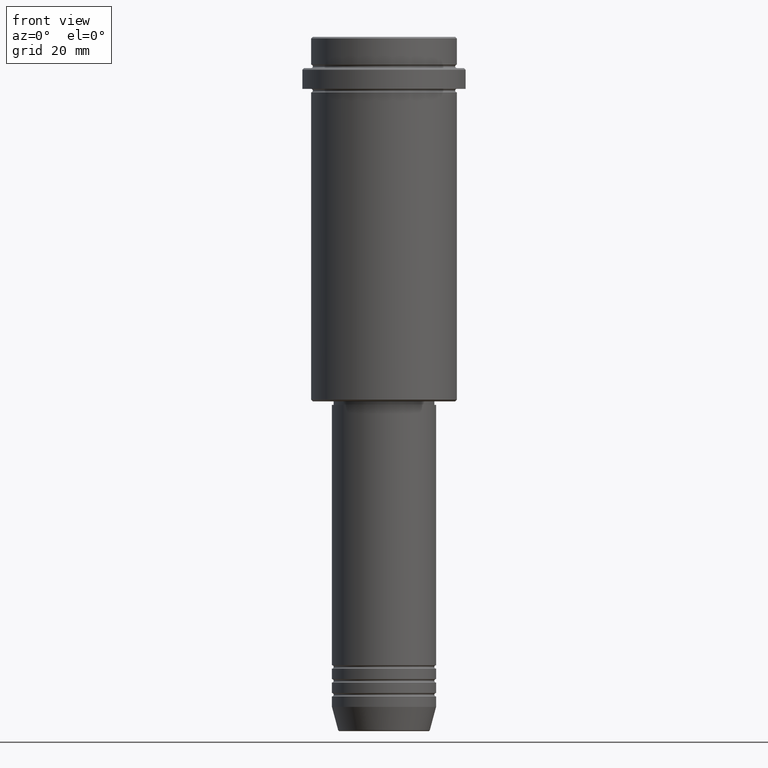
[diagram: clean part render]
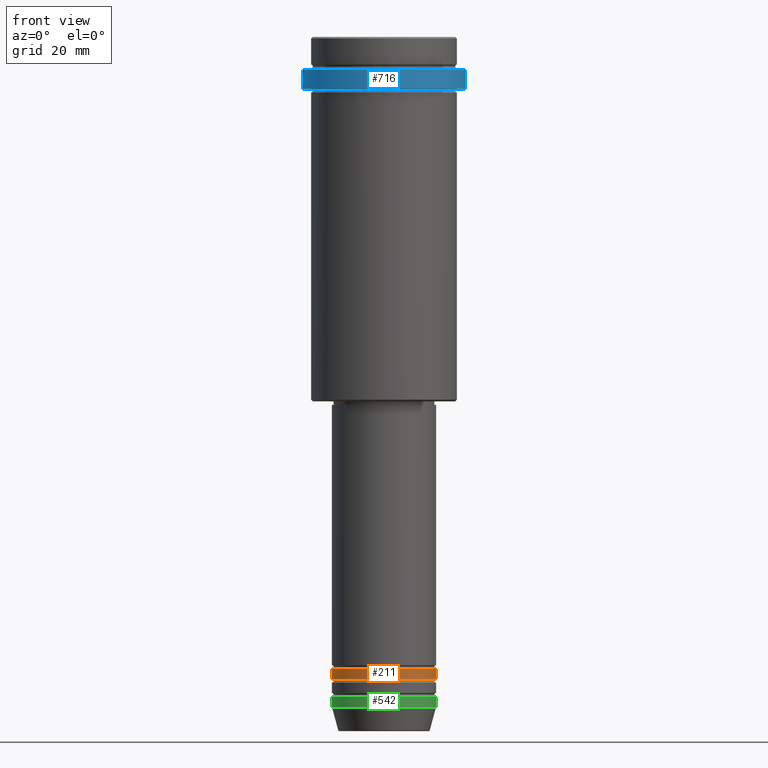
[diagram: same view with three faces highlighted in distinct colors, each labeled with its STEP entity id]
A machine part, front view with three faces highlighted in distinct colors.
Their STEP definitions:

[orange] entity #211 — the highlighted cylindrical surface (partial cylindrical patch) has radius 15 mm, axis along (-0, -0, 1).
#5 = ORIENTED_EDGE ( 'NONE', *, *, #12, .T. ) ;
#12 = EDGE_CURVE ( 'NONE', #1263, #1382, #165, .T. ) ;
#67 = CARTESIAN_POINT ( 'NONE',  ( -15.00000000000000000, 1.836970198721029589E-15, -184.9999999999998863 ) ) ;
#77 = CARTESIAN_POINT ( 'NONE',  ( -15.00000000000000000, 1.836970198721029589E-15, -181.9999999999998863 ) ) ;
#85 = LINE ( 'NONE', #97, #1361 ) ;
#97 = CARTESIAN_POINT ( 'NONE',  ( 15.00000000000000000, 0.000000000000000000, 0.000000000000000000 ) ) ;
#117 = CARTESIAN_POINT ( 'NONE',  ( -15.00000000000000000, 1.836970198721029589E-15, 0.000000000000000000 ) ) ;
#122 = DIRECTION ( 'NONE',  ( -0.000000000000000000, -0.000000000000000000, 1.000000000000000000 ) ) ;
#165 = CIRCLE ( 'NONE', #826, 15.00000000000000000 ) ;
#211 = ADVANCED_FACE ( 'NONE', ( #1230 ), #249, .T. ) ;
#232 = ORIENTED_EDGE ( 'NONE', *, *, #506, .F. ) ;
#249 = CYLINDRICAL_SURFACE ( 'NONE', #673, 15.00000000000000000 ) ;
#258 = VERTEX_POINT ( 'NONE', #930 ) ;
#277 = CARTESIAN_POINT ( 'NONE',  ( 0.000000000000000000, 0.000000000000000000, -184.9999999999998863 ) ) ;
#349 = CARTESIAN_POINT ( 'NONE',  ( 0.000000000000000000, 0.000000000000000000, 0.000000000000000000 ) ) ;
#506 = EDGE_CURVE ( 'NONE', #751, #258, #855, .T. ) ;
#556 = EDGE_LOOP ( 'NONE', ( #1279, #5, #644, #232 ) ) ;
#644 = ORIENTED_EDGE ( 'NONE', *, *, #1234, .T. ) ;
#668 = DIRECTION ( 'NONE',  ( 1.000000000000000000, 0.000000000000000000, 0.000000000000000000 ) ) ;
#673 = AXIS2_PLACEMENT_3D ( 'NONE', #349, #1215, #676 ) ;
#676 = DIRECTION ( 'NONE',  ( 1.000000000000000000, 0.000000000000000000, 0.000000000000000000 ) ) ;
#751 = VERTEX_POINT ( 'NONE', #77 ) ;
#826 = AXIS2_PLACEMENT_3D ( 'NONE', #277, #933, #1406 ) ;
#842 = DIRECTION ( 'NONE',  ( -0.000000000000000000, -0.000000000000000000, 1.000000000000000000 ) ) ;
#855 = CIRCLE ( 'NONE', #1335, 15.00000000000000000 ) ;
#879 = CARTESIAN_POINT ( 'NONE',  ( 15.00000000000000000, 0.000000000000000000, -184.9999999999998863 ) ) ;
#930 = CARTESIAN_POINT ( 'NONE',  ( 15.00000000000000000, 0.000000000000000000, -181.9999999999998863 ) ) ;
#933 = DIRECTION ( 'NONE',  ( -0.000000000000000000, -0.000000000000000000, 1.000000000000000000 ) ) ;
#1215 = DIRECTION ( 'NONE',  ( -0.000000000000000000, -0.000000000000000000, 1.000000000000000000 ) ) ;
#1230 = FACE_OUTER_BOUND ( 'NONE', #556, .T. ) ;
#1234 = EDGE_CURVE ( 'NONE', #1382, #258, #85, .T. ) ;
#1245 = VECTOR ( 'NONE', #1298, 1000.000000000000000 ) ;
#1263 = VERTEX_POINT ( 'NONE', #67 ) ;
#1279 = ORIENTED_EDGE ( 'NONE', *, *, #1360, .F. ) ;
#1298 = DIRECTION ( 'NONE',  ( -0.000000000000000000, -0.000000000000000000, 1.000000000000000000 ) ) ;
#1324 = CARTESIAN_POINT ( 'NONE',  ( 0.000000000000000000, 0.000000000000000000, -181.9999999999998863 ) ) ;
#1328 = LINE ( 'NONE', #117, #1245 ) ;
#1335 = AXIS2_PLACEMENT_3D ( 'NONE', #1324, #122, #668 ) ;
#1360 = EDGE_CURVE ( 'NONE', #1263, #751, #1328, .T. ) ;
#1361 = VECTOR ( 'NONE', #842, 1000.000000000000000 ) ;
#1382 = VERTEX_POINT ( 'NONE', #879 ) ;
#1406 = DIRECTION ( 'NONE',  ( 1.000000000000000000, 0.000000000000000000, 0.000000000000000000 ) ) ;

[blue] entity #716 — the highlighted cylindrical surface (partial cylindrical patch) has radius 23.5 mm, axis along (-0, -0, 1).
#7 = CARTESIAN_POINT ( 'NONE',  ( 23.50000000000000355, 0.000000000000000000, -15.00000000000000000 ) ) ;
#36 = ORIENTED_EDGE ( 'NONE', *, *, #902, .T. ) ;
#69 = DIRECTION ( 'NONE',  ( 1.000000000000000000, 0.000000000000000000, 0.000000000000000000 ) ) ;
#86 = DIRECTION ( 'NONE',  ( -0.000000000000000000, -0.000000000000000000, 1.000000000000000000 ) ) ;
#114 = VERTEX_POINT ( 'NONE', #139 ) ;
#139 = CARTESIAN_POINT ( 'NONE',  ( -23.50000000000000711, 2.877919977996281109E-15, -15.00000000000000000 ) ) ;
#191 = LINE ( 'NONE', #1063, #992 ) ;
#377 = CIRCLE ( 'NONE', #1016, 23.50000000000000000 ) ;
#445 = VECTOR ( 'NONE', #570, 1000.000000000000000 ) ;
#493 = CARTESIAN_POINT ( 'NONE',  ( 23.50000000000000000, 0.000000000000000000, -9.500000000000000000 ) ) ;
#502 = EDGE_CURVE ( 'NONE', #114, #865, #191, .T. ) ;
#508 = CYLINDRICAL_SURFACE ( 'NONE', #1243, 23.50000000000000000 ) ;
#570 = DIRECTION ( 'NONE',  ( -0.000000000000000000, -0.000000000000000000, 1.000000000000000000 ) ) ;
#637 = CARTESIAN_POINT ( 'NONE',  ( -23.50000000000000000, 2.877919977996280320E-15, -9.500000000000000000 ) ) ;
#669 = DIRECTION ( 'NONE',  ( 1.000000000000000000, 0.000000000000000000, 0.000000000000000000 ) ) ;
#689 = EDGE_LOOP ( 'NONE', ( #905, #36, #774, #1313 ) ) ;
#716 = ADVANCED_FACE ( 'NONE', ( #937 ), #508, .T. ) ;
#774 = ORIENTED_EDGE ( 'NONE', *, *, #982, .T. ) ;
#807 = CIRCLE ( 'NONE', #1264, 23.50000000000000355 ) ;
#850 = DIRECTION ( 'NONE',  ( -0.000000000000000000, -0.000000000000000000, 1.000000000000000000 ) ) ;
#865 = VERTEX_POINT ( 'NONE', #637 ) ;
#886 = VERTEX_POINT ( 'NONE', #7 ) ;
#902 = EDGE_CURVE ( 'NONE', #114, #886, #807, .T. ) ;
#905 = ORIENTED_EDGE ( 'NONE', *, *, #502, .F. ) ;
#937 = FACE_OUTER_BOUND ( 'NONE', #689, .T. ) ;
#982 = EDGE_CURVE ( 'NONE', #886, #1162, #1319, .T. ) ;
#992 = VECTOR ( 'NONE', #86, 1000.000000000000000 ) ;
#1016 = AXIS2_PLACEMENT_3D ( 'NONE', #1053, #1292, #1185 ) ;
#1053 = CARTESIAN_POINT ( 'NONE',  ( 0.000000000000000000, 0.000000000000000000, -9.500000000000000000 ) ) ;
#1063 = CARTESIAN_POINT ( 'NONE',  ( -23.50000000000000000, 2.877919977996280320E-15, 0.000000000000000000 ) ) ;
#1064 = CARTESIAN_POINT ( 'NONE',  ( 0.000000000000000000, 0.000000000000000000, 0.000000000000000000 ) ) ;
#1162 = VERTEX_POINT ( 'NONE', #493 ) ;
#1185 = DIRECTION ( 'NONE',  ( 1.000000000000000000, 0.000000000000000000, 0.000000000000000000 ) ) ;
#1194 = CARTESIAN_POINT ( 'NONE',  ( 0.000000000000000000, 0.000000000000000000, -15.00000000000000000 ) ) ;
#1208 = EDGE_CURVE ( 'NONE', #1162, #865, #377, .T. ) ;
#1214 = CARTESIAN_POINT ( 'NONE',  ( 23.50000000000000000, 0.000000000000000000, 0.000000000000000000 ) ) ;
#1243 = AXIS2_PLACEMENT_3D ( 'NONE', #1064, #850, #69 ) ;
#1264 = AXIS2_PLACEMENT_3D ( 'NONE', #1194, #1307, #669 ) ;
#1292 = DIRECTION ( 'NONE',  ( 0.000000000000000000, 0.000000000000000000, -1.000000000000000000 ) ) ;
#1307 = DIRECTION ( 'NONE',  ( -0.000000000000000000, -0.000000000000000000, 1.000000000000000000 ) ) ;
#1313 = ORIENTED_EDGE ( 'NONE', *, *, #1208, .T. ) ;
#1319 = LINE ( 'NONE', #1214, #445 ) ;

[green] entity #542 — the highlighted cylindrical surface (partial cylindrical patch) has radius 15 mm, axis along (-0, -0, 1).
#14 = DIRECTION ( 'NONE',  ( -0.000000000000000000, -0.000000000000000000, 1.000000000000000000 ) ) ;
#27 = ORIENTED_EDGE ( 'NONE', *, *, #880, .F. ) ;
#41 = EDGE_CURVE ( 'NONE', #504, #621, #606, .T. ) ;
#118 = DIRECTION ( 'NONE',  ( -0.000000000000000000, -0.000000000000000000, 1.000000000000000000 ) ) ;
#185 = LINE ( 'NONE', #1056, #424 ) ;
#202 = CARTESIAN_POINT ( 'NONE',  ( -15.00000000000000000, 1.836970198721029589E-15, -193.0000000000000000 ) ) ;
#271 = CARTESIAN_POINT ( 'NONE',  ( 15.00000000000000000, 0.000000000000000000, -190.0000000000000000 ) ) ;
#384 = CARTESIAN_POINT ( 'NONE',  ( 15.00000000000000000, 0.000000000000000000, 0.000000000000000000 ) ) ;
#424 = VECTOR ( 'NONE', #643, 1000.000000000000000 ) ;
#504 = VERTEX_POINT ( 'NONE', #202 ) ;
#519 = DIRECTION ( 'NONE',  ( 1.000000000000000000, 0.000000000000000000, 0.000000000000000000 ) ) ;
#534 = VERTEX_POINT ( 'NONE', #1213 ) ;
#542 = ADVANCED_FACE ( 'NONE', ( #1099 ), #672, .T. ) ;
#569 = CARTESIAN_POINT ( 'NONE',  ( 0.000000000000000000, 0.000000000000000000, 0.000000000000000000 ) ) ;
#600 = VERTEX_POINT ( 'NONE', #271 ) ;
#606 = CIRCLE ( 'NONE', #1400, 15.00000000000000000 ) ;
#621 = VERTEX_POINT ( 'NONE', #914 ) ;
#643 = DIRECTION ( 'NONE',  ( -0.000000000000000000, -0.000000000000000000, 1.000000000000000000 ) ) ;
#658 = EDGE_CURVE ( 'NONE', #621, #600, #1137, .T. ) ;
#672 = CYLINDRICAL_SURFACE ( 'NONE', #1036, 15.00000000000000000 ) ;
#777 = EDGE_CURVE ( 'NONE', #504, #534, #185, .T. ) ;
#821 = DIRECTION ( 'NONE',  ( -0.000000000000000000, -0.000000000000000000, 1.000000000000000000 ) ) ;
#832 = ORIENTED_EDGE ( 'NONE', *, *, #658, .T. ) ;
#833 = ORIENTED_EDGE ( 'NONE', *, *, #41, .T. ) ;
#875 = CARTESIAN_POINT ( 'NONE',  ( 0.000000000000000000, 0.000000000000000000, -190.0000000000000000 ) ) ;
#880 = EDGE_CURVE ( 'NONE', #534, #600, #1109, .T. ) ;
#914 = CARTESIAN_POINT ( 'NONE',  ( 15.00000000000000000, 0.000000000000000000, -193.0000000000000000 ) ) ;
#922 = VECTOR ( 'NONE', #821, 1000.000000000000000 ) ;
#966 = EDGE_LOOP ( 'NONE', ( #1155, #833, #832, #27 ) ) ;
#1005 = DIRECTION ( 'NONE',  ( 1.000000000000000000, 0.000000000000000000, 0.000000000000000000 ) ) ;
#1036 = AXIS2_PLACEMENT_3D ( 'NONE', #569, #118, #1110 ) ;
#1056 = CARTESIAN_POINT ( 'NONE',  ( -15.00000000000000000, 1.836970198721029589E-15, 0.000000000000000000 ) ) ;
#1099 = FACE_OUTER_BOUND ( 'NONE', #966, .T. ) ;
#1109 = CIRCLE ( 'NONE', #1287, 15.00000000000000000 ) ;
#1110 = DIRECTION ( 'NONE',  ( 1.000000000000000000, 0.000000000000000000, 0.000000000000000000 ) ) ;
#1137 = LINE ( 'NONE', #384, #922 ) ;
#1155 = ORIENTED_EDGE ( 'NONE', *, *, #777, .F. ) ;
#1174 = DIRECTION ( 'NONE',  ( -0.000000000000000000, -0.000000000000000000, 1.000000000000000000 ) ) ;
#1182 = CARTESIAN_POINT ( 'NONE',  ( 0.000000000000000000, 0.000000000000000000, -193.0000000000000000 ) ) ;
#1213 = CARTESIAN_POINT ( 'NONE',  ( -15.00000000000000000, 1.836970198721029589E-15, -190.0000000000000000 ) ) ;
#1287 = AXIS2_PLACEMENT_3D ( 'NONE', #875, #14, #1005 ) ;
#1400 = AXIS2_PLACEMENT_3D ( 'NONE', #1182, #1174, #519 ) ;